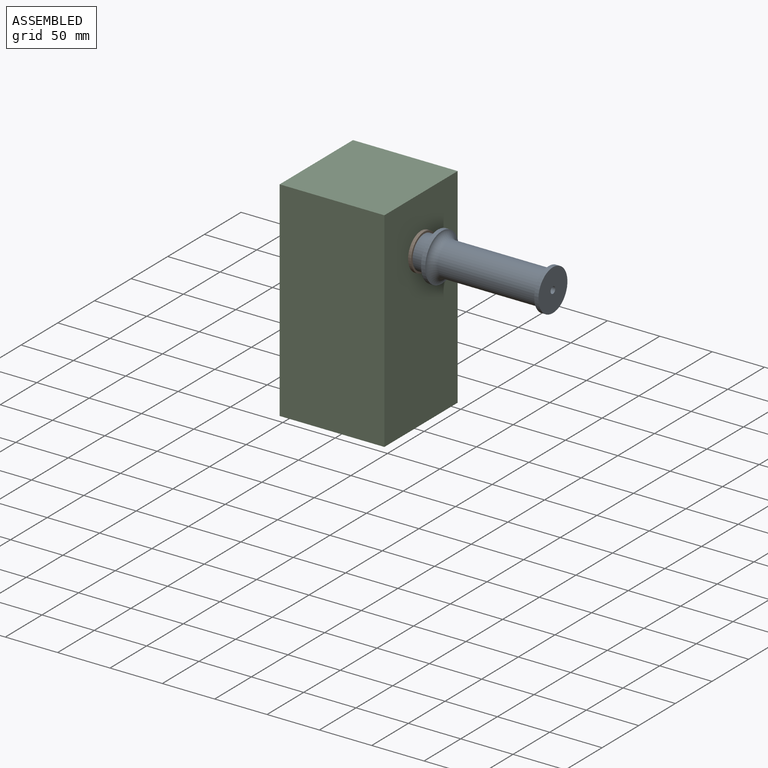
[diagram: assembled view]
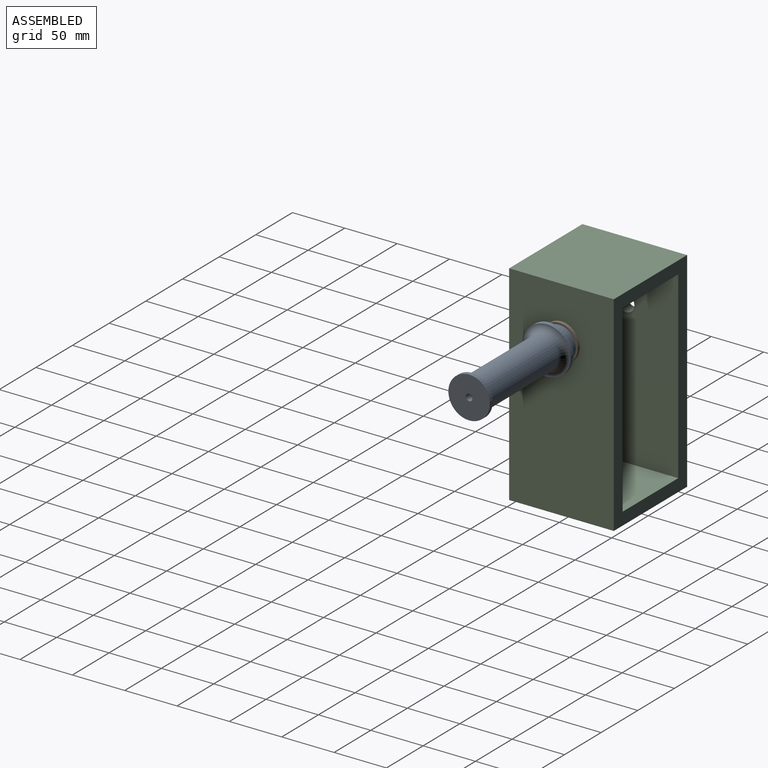
[diagram: assembled view, second angle]
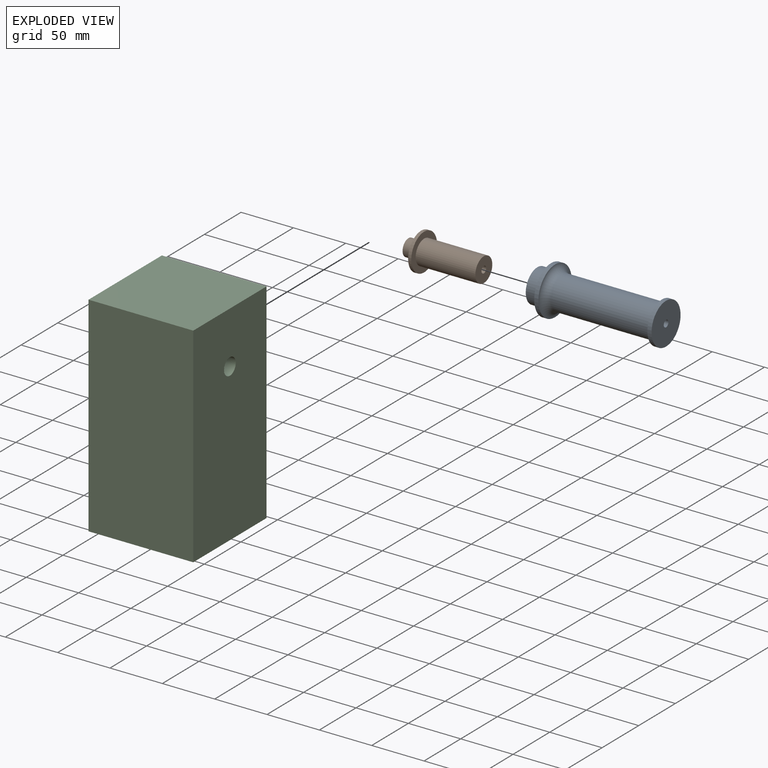
[diagram: exploded view]
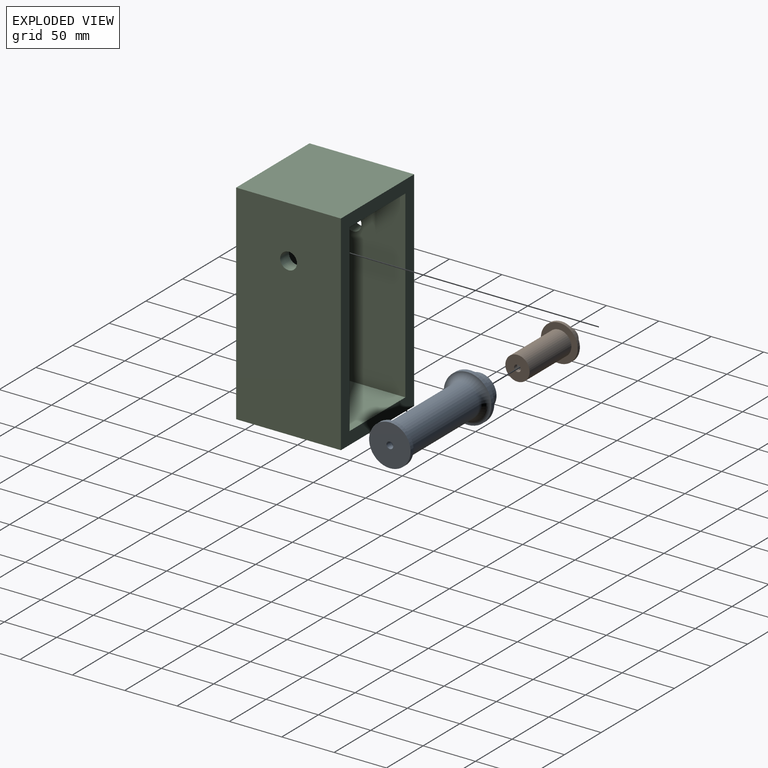
[diagram: exploded view, second angle]
ASSEMBLY  parts=3 mates=2
PART A: 12 faces, bbox 123x60.1x60.1 mm
  f0: plane 31.6x31.6mm, normal (1,0,0), area 346.8mm2, adj f1,f10
  f1: cylinder r=15.8mm len=31.6mm, axis (-1,0,0), area 1290.6mm2, adj f0,f2
  f2: plane 45.6x45.6mm, normal (1,0,0), area 848.9mm2, adj f1,f3
  f3: cylinder r=22.8mm len=45.6mm, axis (-1,0,0), area 573mm2, adj f2,f4
  f4: torus R=22.8mm, axis (-1,0,0), area 1267.3mm2, adj f3,f5
  f5: cylinder r=15.8mm len=95mm, axis (-1,0,0), area 9431.1mm2, adj f4,f6
  f6: plane 39.6x39.6mm, normal (1,0,0), area 447.4mm2, adj f5,f7
  f7: cylinder r=19.8mm len=39.6mm, axis (-1,0,0), area 497.6mm2, adj f6,f8
  f8: plane 39.6x39.6mm, normal (-1,0,0), area 1199.5mm2, adj f7,f11
  f9: plane 23.6x23.6mm, normal (1,0,0), area 405.3mm2, adj f10,f11
  f10: cylinder r=11.8mm len=117mm, axis (-1,0,0), area 8674.6mm2, adj f0,f9
  f11: cylinder r=3.2mm len=6.4mm, axis (-1,0,0), area 120.6mm2, adj f8,f9
PART B: 42 faces, bbox 72.6x35.8x35.8 mm
  f0: plane 0.5x0.29mm, normal (-1,0,0), area 0mm2, adj f6,f40
  f1: plane 0.58x0.01mm, normal (-1,0,0), area 0mm2, adj f6,f37
  f2: plane 0.5x0.29mm, normal (-1,0,0), area 0mm2, adj f6,f39
  f3: plane 0.5x0.29mm, normal (-1,0,0), area 0mm2, adj f6,f35
  f4: plane 0.5x0.29mm, normal (-1,0,0), area 0mm2, adj f6,f36
  f5: cylinder r=3.2mm len=6.4mm, axis (1,0,0), area 80.4mm2, adj f25,f41
  f6: cylinder r=7.51mm len=39mm, axis (-1,0,0), area 1813.9mm2, adj f0,f1,f2,f3,f4,f7,f8,f9
  f7: plane 6.5x3.75mm, normal (1,0,0), area 5.1mm2, adj f6,f19
  f8: plane 6.5x3.75mm, normal (1,0,0), area 5.1mm2, adj f6,f20
  f9: plane 7.51x1.01mm, normal (1,0,0), area 5.1mm2, adj f6,f21
  f10: plane 6.5x3.75mm, normal (1,0,0), area 5.1mm2, adj f6,f22
  f11: plane 6.5x3.75mm, normal (1,0,0), area 5.1mm2, adj f6,f23
  f12: plane 7.51x1.01mm, normal (1,0,0), area 5.1mm2, adj f6,f24
  f13: cylinder r=4.2mm len=15.5mm, axis (1,0,0), area 409mm2, adj f15,f18
  f14: cylinder r=8mm len=16mm, axis (1,0,0), area 603.2mm2, adj f15,f17
  f15: plane 16x16mm, normal (-1,0,0), area 145.6mm2, adj f13,f14
  f16: cylinder r=11.6mm len=57mm, axis (-1,0,0), area 4154.4mm2, adj f25,f27
  f17: plane 35.2x35.2mm, normal (-1,0,0), area 772.1mm2, adj f14,f26
  f18: plane 15.01x13mm, normal (1,0,0), area 90.9mm2, adj f13,f19,f20,f21,f22,f23,f24
  f19: plane 6.5x6.5mm, normal (0,-0.87,0.5), area 48.8mm2, adj f7,f18,f20,f24
  f20: plane 6.5x6.5mm, normal (0,-0.87,-0.5), area 48.8mm2, adj f8,f18,f19,f21
  f21: plane 7.51x6.5mm, normal (0,0,-1), area 48.8mm2, adj f9,f18,f20,f22
  f22: plane 6.5x6.5mm, normal (0,0.87,-0.5), area 48.8mm2, adj f10,f18,f21,f23
  f23: plane 6.5x6.5mm, normal (0,0.87,0.5), area 48.8mm2, adj f11,f18,f22,f24
  f24: plane 7.51x6.5mm, normal (0,0,1), area 48.8mm2, adj f12,f18,f19,f23
  f25: plane 23.2x23.2mm, normal (1,0,0), area 390.6mm2, adj f5,f16
  f26: cylinder r=17.6mm len=35.2mm, axis (-1,0,0), area 331.8mm2, adj f17,f27
  f27: plane 35.2x35.2mm, normal (1,0,0), area 550.4mm2, adj f16,f26
  f28: plane 0.58x0.01mm, normal (-1,0,0), area 0mm2, adj f6,f38
  f29: plane 5.1x3.71mm, normal (0,0.87,0.5), area 20.2mm2, adj f30,f34,f35,f41
  f30: plane 5.1x3.71mm, normal (0,0.87,-0.5), area 20.2mm2, adj f29,f31,f36,f41
  f31: plane 6.46x4.28mm, normal (0,0,-1), area 20.2mm2, adj f30,f32,f38,f41
  f32: plane 5.1x3.71mm, normal (0,-0.87,-0.5), area 20.2mm2, adj f31,f33,f40,f41
  f33: plane 5.1x3.71mm, normal (0,-0.87,0.5), area 20.2mm2, adj f32,f34,f39,f41
  f34: plane 5.89x3.71mm, normal (0,0,1), area 20.2mm2, adj f29,f33,f37,f41
  f35: plane 6.92x4.98mm, normal (-0.71,0.61,0.35), area 20.5mm2, adj f3,f6,f29,f36,f37
  f36: plane 6.92x4.98mm, normal (-0.71,0.61,-0.35), area 20.5mm2, adj f4,f6,f30,f35,f38
  f37: plane 7.93x2.82mm, normal (-0.71,0,0.71), area 20.5mm2, adj f1,f6,f34,f35,f39
  f38: plane 7.93x2.82mm, normal (-0.71,0,-0.71), area 20.5mm2, adj f6,f28,f31,f36,f40
  f39: plane 6.92x4.98mm, normal (-0.71,-0.61,0.35), area 20.5mm2, adj f2,f6,f33,f37,f40
  f40: plane 6.92x4.98mm, normal (-0.71,-0.61,-0.35), area 20.5mm2, adj f0,f6,f32,f38,f39
  f41: cone r=3.2mm half-angle=45deg, axis (-1,0,0), area 82.7mm2, adj f5,f29,f30,f31,f32,f33,f34
PART C: 13 faces, bbox 100x100x200 mm
  f0: cylinder r=8mm len=16mm, axis (1,0,0), area 603.2mm2, adj f2,f9
  f1: plane 200x100mm, normal (0,1,0), area 6624mm2, adj f2,f4,f5,f6,f8,f9,f10,f11
  f2: plane 200x100mm, normal (-1,0,0), area 19798.9mm2, adj f0,f1,f3,f5,f6
  f3: plane 200x100mm, normal (0,-1,0), area 20000mm2, adj f2,f4,f5,f6
  f4: plane 200x100mm, normal (1,0,0), area 19798.9mm2, adj f1,f3,f5,f6,f7
  f5: plane 100x100mm, normal (0,0,1), area 10000mm2, adj f1,f2,f3,f4
  f6: plane 100x100mm, normal (0,0,-1), area 10000mm2, adj f1,f2,f3,f4
  f7: cylinder r=8mm len=16mm, axis (1,0,0), area 603.2mm2, adj f4,f11
  f8: plane 88x76mm, normal (0,0,1), area 6688mm2, adj f1,f9,f11,f12
  f9: plane 176x88mm, normal (1,0,0), area 15286.9mm2, adj f0,f1,f8,f10,f12
  f10: plane 88x76mm, normal (0,0,-1), area 6688mm2, adj f1,f9,f11,f12
  f11: plane 176x88mm, normal (-1,0,0), area 15286.9mm2, adj f1,f7,f8,f10,f12
  f12: plane 176x76mm, normal (0,1,0), area 13376mm2, adj f8,f9,f10,f11
PLACE A rot(axis=(0,1,0),180deg) t=(50,0,150)mm
PLACE B t=(47,0,100)mm
PLACE C t=(-3,0,0)mm
MATE revolute A.f1 <-> B.f5  axis (-1,0,0) through (50,0,150)mm
MATE fastened B.f5 <-> C.f0  axis (-1,0,0) through (47,0,150)mm
